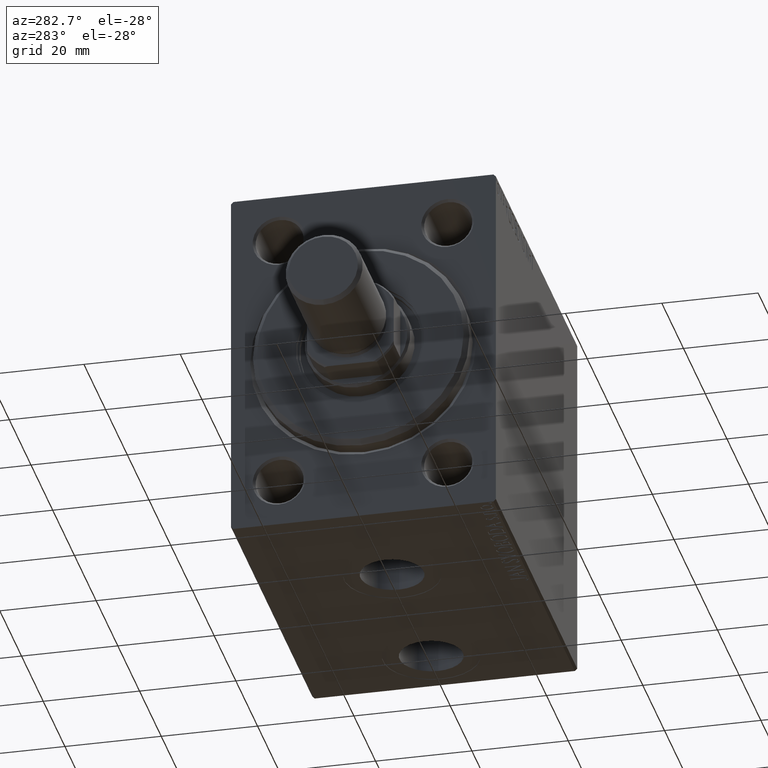
[diagram: clean part render]
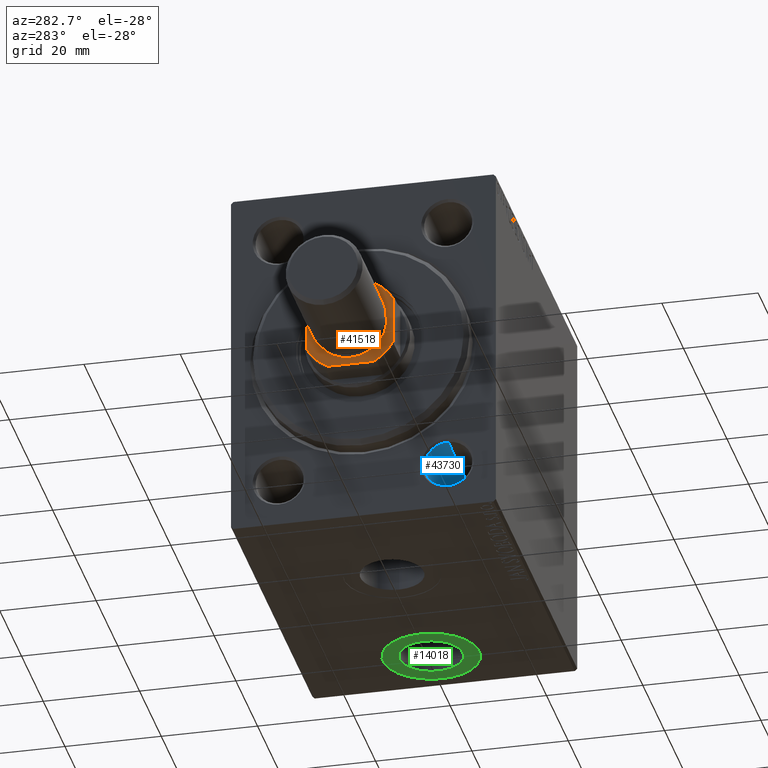
[diagram: same view with three faces highlighted in distinct colors, each labeled with its STEP entity id]
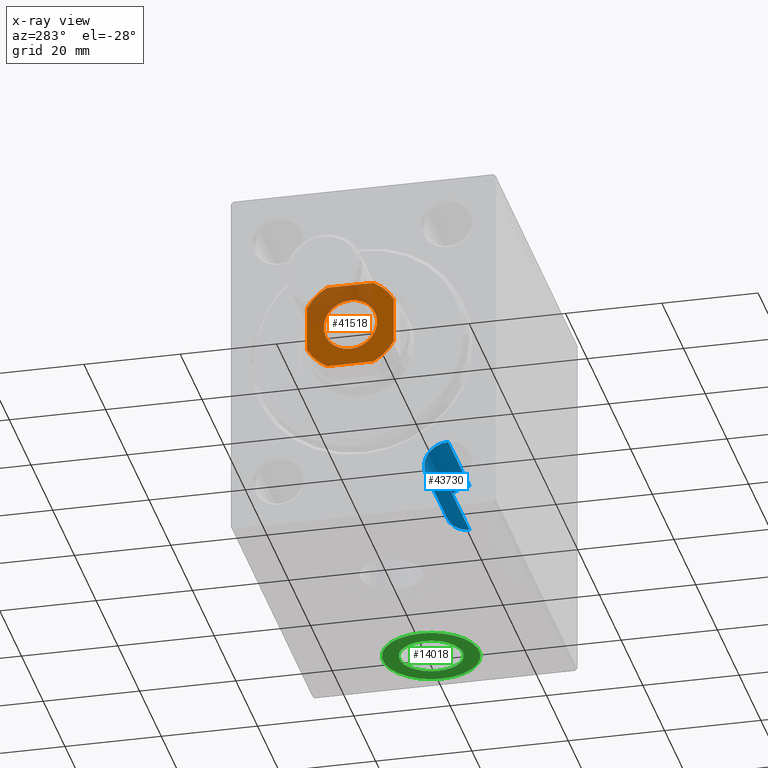
[diagram: x-ray of the same camera — body ghosted, the three highlighted faces saturated]
A machine part, auxiliary view with three faces highlighted in distinct colors.
The next image is the same camera in x-ray (body ghosted, the three faces saturated) — at least one of them is partly hidden behind the body in this view.
Their STEP definitions:

[orange] entity #41518 — the highlighted planar face has unit normal (-1, 0, 0).
#258 = ORIENTED_EDGE ( 'NONE', *, *, #14585, .T. ) ;
#431 = DIRECTION ( 'NONE',  ( 1.000000000000000000, 0.000000000000000000, 0.000000000000000000 ) ) ;
#521 = CARTESIAN_POINT ( 'NONE',  ( 8.999999999999998224, 4.800000000000010481, 77.00000000000001421 ) ) ;
#935 = DIRECTION ( 'NONE',  ( 1.927470528863119049E-16, -1.000000000000000000, 0.000000000000000000 ) ) ;
#1199 = CARTESIAN_POINT ( 'NONE',  ( 4.800000000000006928, -9.000000000000001776, 77.00000000000001421 ) ) ;
#1225 = ORIENTED_EDGE ( 'NONE', *, *, #35925, .T. ) ;
#1614 = LINE ( 'NONE', #12778, #33532 ) ;
#2029 = DIRECTION ( 'NONE',  ( -0.000000000000000000, 0.000000000000000000, 1.000000000000000000 ) ) ;
#2170 = ORIENTED_EDGE ( 'NONE', *, *, #41101, .T. ) ;
#2281 = CARTESIAN_POINT ( 'NONE',  ( 0.000000000000000000, 0.000000000000000000, 77.00000000000001421 ) ) ;
#2288 = AXIS2_PLACEMENT_3D ( 'NONE', #9945, #24357, #27852 ) ;
#2315 = EDGE_CURVE ( 'NONE', #2965, #8378, #4502, .T. ) ;
#2830 = CARTESIAN_POINT ( 'NONE',  ( -4.799999999999995381, -9.000000000000001776, 77.00000000000001421 ) ) ;
#2965 = VERTEX_POINT ( 'NONE', #25608 ) ;
#3362 = AXIS2_PLACEMENT_3D ( 'NONE', #36082, #32364, #7927 ) ;
#3585 = CARTESIAN_POINT ( 'NONE',  ( -8.999999999999998224, -4.799999999999999822, 77.00000000000001421 ) ) ;
#4456 = DIRECTION ( 'NONE',  ( -1.000000000000000000, -0.000000000000000000, -0.000000000000000000 ) ) ;
#4502 = CIRCLE ( 'NONE', #2288, 10.19999999999999396 ) ;
#6111 = EDGE_CURVE ( 'NONE', #36020, #32091, #38819, .T. ) ;
#6259 = VERTEX_POINT ( 'NONE', #42935 ) ;
#6490 = ORIENTED_EDGE ( 'NONE', *, *, #17903, .T. ) ;
#6657 = CARTESIAN_POINT ( 'NONE',  ( 8.999999999999998224, 8.999999999999998224, 77.00000000000001421 ) ) ;
#7162 = ORIENTED_EDGE ( 'NONE', *, *, #21734, .T. ) ;
#7927 = DIRECTION ( 'NONE',  ( 1.000000000000000000, 0.000000000000000000, 0.000000000000000000 ) ) ;
#8221 = DIRECTION ( 'NONE',  ( -1.927470528863119049E-16, 1.000000000000000000, -0.000000000000000000 ) ) ;
#8378 = VERTEX_POINT ( 'NONE', #16409 ) ;
#9140 = ORIENTED_EDGE ( 'NONE', *, *, #39602, .T. ) ;
#9241 = CARTESIAN_POINT ( 'NONE',  ( 0.000000000000000000, 0.000000000000000000, 77.00000000000001421 ) ) ;
#9898 = EDGE_LOOP ( 'NONE', ( #1225, #2170 ) ) ;
#9945 = CARTESIAN_POINT ( 'NONE',  ( 0.000000000000000000, 0.000000000000000000, 77.00000000000001421 ) ) ;
#10513 = AXIS2_PLACEMENT_3D ( 'NONE', #31964, #35460, #17994 ) ;
#11152 = CARTESIAN_POINT ( 'NONE',  ( -9.000000000000001776, 8.999999999999998224, 77.00000000000001421 ) ) ;
#12778 = CARTESIAN_POINT ( 'NONE',  ( -8.999999999999998224, -9.000000000000001776, 77.00000000000001421 ) ) ;
#13248 = ORIENTED_EDGE ( 'NONE', *, *, #15168, .T. ) ;
#13527 = VERTEX_POINT ( 'NONE', #2830 ) ;
#14159 = CARTESIAN_POINT ( 'NONE',  ( 0.000000000000000000, 0.000000000000000000, 77.00000000000001421 ) ) ;
#14585 = EDGE_CURVE ( 'NONE', #8378, #41125, #33030, .T. ) ;
#15168 = EDGE_CURVE ( 'NONE', #41125, #13527, #16739, .T. ) ;
#16409 = CARTESIAN_POINT ( 'NONE',  ( -9.000000000000001776, 4.799999999999986500, 77.00000000000001421 ) ) ;
#16739 = CIRCLE ( 'NONE', #42739, 10.19999999999999929 ) ;
#17469 = CIRCLE ( 'NONE', #3362, 10.20000000000000462 ) ;
#17903 = EDGE_CURVE ( 'NONE', #44157, #35678, #17469, .T. ) ;
#17994 = DIRECTION ( 'NONE',  ( 1.000000000000000000, 0.000000000000000000, 0.000000000000000000 ) ) ;
#19945 = FACE_BOUND ( 'NONE', #9898, .T. ) ;
#19986 = DIRECTION ( 'NONE',  ( 1.000000000000000000, 0.000000000000000000, 0.000000000000000000 ) ) ;
#21367 = DIRECTION ( 'NONE',  ( -0.000000000000000000, 0.000000000000000000, 1.000000000000000000 ) ) ;
#21734 = EDGE_CURVE ( 'NONE', #32091, #2965, #28863, .T. ) ;
#23814 = CARTESIAN_POINT ( 'NONE',  ( 0.000000000000000000, 0.000000000000000000, 77.00000000000001421 ) ) ;
#24357 = DIRECTION ( 'NONE',  ( -0.000000000000000000, 0.000000000000000000, 1.000000000000000000 ) ) ;
#24626 = CIRCLE ( 'NONE', #10513, 5.550000000000013145 ) ;
#24992 = CARTESIAN_POINT ( 'NONE',  ( 9.000000000000001776, -4.800000000000007816, 77.00000000000001421 ) ) ;
#25608 = CARTESIAN_POINT ( 'NONE',  ( -4.799999999999990941, 8.999999999999998224, 77.00000000000001421 ) ) ;
#26708 = VECTOR ( 'NONE', #8221, 1000.000000000000000 ) ;
#26885 = AXIS2_PLACEMENT_3D ( 'NONE', #2281, #44149, #30660 ) ;
#27789 = CARTESIAN_POINT ( 'NONE',  ( 5.550000000000013145, 0.000000000000000000, 77.00000000000001421 ) ) ;
#27852 = DIRECTION ( 'NONE',  ( 1.000000000000000000, 0.000000000000000000, 0.000000000000000000 ) ) ;
#28863 = LINE ( 'NONE', #32598, #39846 ) ;
#29131 = AXIS2_PLACEMENT_3D ( 'NONE', #9241, #2029, #44609 ) ;
#29941 = PLANE ( 'NONE',  #26885 ) ;
#30534 = VERTEX_POINT ( 'NONE', #27789 ) ;
#30660 = DIRECTION ( 'NONE',  ( 1.000000000000000000, 0.000000000000000000, 0.000000000000000000 ) ) ;
#31944 = CIRCLE ( 'NONE', #37153, 5.550000000000013145 ) ;
#31964 = CARTESIAN_POINT ( 'NONE',  ( 0.000000000000000000, 0.000000000000000000, 77.00000000000001421 ) ) ;
#32091 = VERTEX_POINT ( 'NONE', #41329 ) ;
#32364 = DIRECTION ( 'NONE',  ( -0.000000000000000000, 0.000000000000000000, 1.000000000000000000 ) ) ;
#32598 = CARTESIAN_POINT ( 'NONE',  ( -9.000000000000001776, 8.999999999999998224, 77.00000000000001421 ) ) ;
#33030 = LINE ( 'NONE', #11152, #40522 ) ;
#33532 = VECTOR ( 'NONE', #19986, 1000.000000000000000 ) ;
#34151 = FACE_OUTER_BOUND ( 'NONE', #35426, .T. ) ;
#34595 = ORIENTED_EDGE ( 'NONE', *, *, #6111, .T. ) ;
#35426 = EDGE_LOOP ( 'NONE', ( #39430, #34595, #7162, #36769, #258, #13248, #9140, #6490 ) ) ;
#35460 = DIRECTION ( 'NONE',  ( 0.000000000000000000, -0.000000000000000000, -1.000000000000000000 ) ) ;
#35678 = VERTEX_POINT ( 'NONE', #24992 ) ;
#35925 = EDGE_CURVE ( 'NONE', #30534, #6259, #31944, .T. ) ;
#36020 = VERTEX_POINT ( 'NONE', #521 ) ;
#36082 = CARTESIAN_POINT ( 'NONE',  ( 0.000000000000000000, 0.000000000000000000, 77.00000000000001421 ) ) ;
#36769 = ORIENTED_EDGE ( 'NONE', *, *, #2315, .T. ) ;
#37153 = AXIS2_PLACEMENT_3D ( 'NONE', #23814, #41519, #38477 ) ;
#38477 = DIRECTION ( 'NONE',  ( 1.000000000000000000, 0.000000000000000000, 0.000000000000000000 ) ) ;
#38819 = CIRCLE ( 'NONE', #29131, 10.20000000000000462 ) ;
#39418 = LINE ( 'NONE', #6657, #26708 ) ;
#39430 = ORIENTED_EDGE ( 'NONE', *, *, #44549, .T. ) ;
#39602 = EDGE_CURVE ( 'NONE', #13527, #44157, #1614, .T. ) ;
#39846 = VECTOR ( 'NONE', #4456, 1000.000000000000000 ) ;
#40522 = VECTOR ( 'NONE', #935, 1000.000000000000000 ) ;
#41101 = EDGE_CURVE ( 'NONE', #6259, #30534, #24626, .T. ) ;
#41125 = VERTEX_POINT ( 'NONE', #3585 ) ;
#41329 = CARTESIAN_POINT ( 'NONE',  ( 4.800000000000012257, 8.999999999999998224, 77.00000000000001421 ) ) ;
#41518 = ADVANCED_FACE ( 'NONE', ( #19945, #34151 ), #29941, .T. ) ;
#41519 = DIRECTION ( 'NONE',  ( 0.000000000000000000, -0.000000000000000000, -1.000000000000000000 ) ) ;
#42739 = AXIS2_PLACEMENT_3D ( 'NONE', #14159, #21367, #431 ) ;
#42935 = CARTESIAN_POINT ( 'NONE',  ( -5.550000000000013145, 6.796789735267826558E-16, 77.00000000000001421 ) ) ;
#44149 = DIRECTION ( 'NONE',  ( -0.000000000000000000, 0.000000000000000000, 1.000000000000000000 ) ) ;
#44157 = VERTEX_POINT ( 'NONE', #1199 ) ;
#44549 = EDGE_CURVE ( 'NONE', #35678, #36020, #39418, .T. ) ;
#44609 = DIRECTION ( 'NONE',  ( 1.000000000000000000, 0.000000000000000000, 0.000000000000000000 ) ) ;

[blue] entity #43730 — the highlighted cylindrical surface (edge-blend (fillet) strip) has radius 5 mm, axis along (-1, -0, -0).
#1304 = EDGE_CURVE ( 'NONE', #27348, #13377, #13508, .T. ) ;
#1782 = ORIENTED_EDGE ( 'NONE', *, *, #45450, .T. ) ;
#4442 = ORIENTED_EDGE ( 'NONE', *, *, #1304, .F. ) ;
#4706 = CARTESIAN_POINT ( 'NONE',  ( 20.00000000000000000, -17.50000000000000000, -32.49999999999999289 ) ) ;
#4909 = DIRECTION ( 'NONE',  ( -1.000000000000000000, -0.000000000000000000, -0.000000000000000000 ) ) ;
#6145 = CARTESIAN_POINT ( 'NONE',  ( 0.5000000000000247580, -17.50000000000000000, -32.49999999999999289 ) ) ;
#7184 = CARTESIAN_POINT ( 'NONE',  ( 20.00000000000000000, -17.50000000000000000, -27.49999999999999645 ) ) ;
#7596 = VERTEX_POINT ( 'NONE', #17554 ) ;
#9852 = DIRECTION ( 'NONE',  ( 0.000000000000000000, 0.000000000000000000, -1.000000000000000000 ) ) ;
#10874 = DIRECTION ( 'NONE',  ( 0.000000000000000000, 0.000000000000000000, 1.000000000000000000 ) ) ;
#11935 = DIRECTION ( 'NONE',  ( 0.000000000000000000, 0.000000000000000000, 1.000000000000000000 ) ) ;
#13377 = VERTEX_POINT ( 'NONE', #4706 ) ;
#13508 = CIRCLE ( 'NONE', #34976, 4.999999999999997335 ) ;
#13714 = VECTOR ( 'NONE', #19387, 1000.000000000000000 ) ;
#13847 = DIRECTION ( 'NONE',  ( -1.000000000000000000, -0.000000000000000000, -0.000000000000000000 ) ) ;
#14128 = CARTESIAN_POINT ( 'NONE',  ( 20.00000000000000000, -17.50000000000000000, -22.50000000000000000 ) ) ;
#16122 = CARTESIAN_POINT ( 'NONE',  ( 0.000000000000000000, -17.50000000000000000, -22.50000000000000000 ) ) ;
#16975 = EDGE_CURVE ( 'NONE', #27348, #7596, #44515, .T. ) ;
#17554 = CARTESIAN_POINT ( 'NONE',  ( 0.5000000000000247580, -17.50000000000000000, -22.50000000000000000 ) ) ;
#19387 = DIRECTION ( 'NONE',  ( -1.000000000000000000, -0.000000000000000000, -0.000000000000000000 ) ) ;
#20039 = AXIS2_PLACEMENT_3D ( 'NONE', #38523, #13847, #11935 ) ;
#21663 = LINE ( 'NONE', #36783, #38527 ) ;
#24322 = CYLINDRICAL_SURFACE ( 'NONE', #20039, 4.999999999999997335 ) ;
#25268 = AXIS2_PLACEMENT_3D ( 'NONE', #27297, #41511, #9852 ) ;
#27297 = CARTESIAN_POINT ( 'NONE',  ( 0.5000000000000247580, -17.50000000000000000, -27.49999999999999645 ) ) ;
#27348 = VERTEX_POINT ( 'NONE', #14128 ) ;
#31743 = EDGE_CURVE ( 'NONE', #13377, #45489, #21663, .T. ) ;
#34976 = AXIS2_PLACEMENT_3D ( 'NONE', #7184, #43455, #10874 ) ;
#36783 = CARTESIAN_POINT ( 'NONE',  ( 0.000000000000000000, -17.50000000000000000, -32.49999999999999289 ) ) ;
#38523 = CARTESIAN_POINT ( 'NONE',  ( 0.000000000000000000, -17.50000000000000000, -27.49999999999999645 ) ) ;
#38527 = VECTOR ( 'NONE', #4909, 1000.000000000000000 ) ;
#39394 = CIRCLE ( 'NONE', #25268, 4.999999999999997335 ) ;
#39615 = ORIENTED_EDGE ( 'NONE', *, *, #16975, .T. ) ;
#41511 = DIRECTION ( 'NONE',  ( -1.000000000000000000, 0.000000000000000000, 0.000000000000000000 ) ) ;
#42025 = FACE_OUTER_BOUND ( 'NONE', #45933, .T. ) ;
#43455 = DIRECTION ( 'NONE',  ( -1.000000000000000000, -0.000000000000000000, -0.000000000000000000 ) ) ;
#43730 = ADVANCED_FACE ( 'NONE', ( #42025 ), #24322, .F. ) ;
#44500 = ORIENTED_EDGE ( 'NONE', *, *, #31743, .F. ) ;
#44515 = LINE ( 'NONE', #16122, #13714 ) ;
#45450 = EDGE_CURVE ( 'NONE', #7596, #45489, #39394, .T. ) ;
#45489 = VERTEX_POINT ( 'NONE', #6145 ) ;
#45933 = EDGE_LOOP ( 'NONE', ( #44500, #4442, #39615, #1782 ) ) ;

[green] entity #14018 — the highlighted planar face has unit normal (0, 0, -1).
#1077 = DIRECTION ( 'NONE',  ( -1.000000000000000000, 0.000000000000000000, 0.000000000000000000 ) ) ;
#1437 = AXIS2_PLACEMENT_3D ( 'NONE', #28988, #7152, #32722 ) ;
#2928 = CIRCLE ( 'NONE', #1437, 10.00000000000000178 ) ;
#3224 = EDGE_CURVE ( 'NONE', #39870, #19254, #3807, .T. ) ;
#3807 = CIRCLE ( 'NONE', #33525, 10.00000000000000178 ) ;
#4116 = DIRECTION ( 'NONE',  ( 0.000000000000000000, 0.000000000000000000, -1.000000000000000000 ) ) ;
#4789 = EDGE_CURVE ( 'NONE', #25784, #43190, #44693, .T. ) ;
#5053 = CARTESIAN_POINT ( 'NONE',  ( 72.50000000000000000, -6.298679886106752964E-15, -37.39999999999999858 ) ) ;
#5696 = DIRECTION ( 'NONE',  ( -1.000000000000000000, 0.000000000000000000, -0.000000000000000000 ) ) ;
#7152 = DIRECTION ( 'NONE',  ( 0.000000000000000000, 0.000000000000000000, -1.000000000000000000 ) ) ;
#9160 = EDGE_LOOP ( 'NONE', ( #15524, #40718 ) ) ;
#9529 = CARTESIAN_POINT ( 'NONE',  ( 62.49999999999999289, -7.523326685254106813E-15, -37.39999999999999858 ) ) ;
#12122 = DIRECTION ( 'NONE',  ( -1.000000000000000000, 0.000000000000000000, 0.000000000000000000 ) ) ;
#12198 = AXIS2_PLACEMENT_3D ( 'NONE', #24060, #43897, #5696 ) ;
#12450 = CARTESIAN_POINT ( 'NONE',  ( 69.07999999999999829, -6.717509091415148559E-15, -37.39999999999999858 ) ) ;
#12705 = CIRCLE ( 'NONE', #44661, 6.580000000000002736 ) ;
#14018 = ADVANCED_FACE ( 'NONE', ( #30814, #27317 ), #29688, .T. ) ;
#15253 = CARTESIAN_POINT ( 'NONE',  ( 62.49999999999999289, -7.523326685254106813E-15, -37.39999999999999858 ) ) ;
#15524 = ORIENTED_EDGE ( 'NONE', *, *, #39385, .F. ) ;
#16036 = DIRECTION ( 'NONE',  ( 0.000000000000000000, 0.000000000000000000, -1.000000000000000000 ) ) ;
#16205 = EDGE_LOOP ( 'NONE', ( #40447, #39255 ) ) ;
#19254 = VERTEX_POINT ( 'NONE', #22079 ) ;
#19504 = CARTESIAN_POINT ( 'NONE',  ( 55.91999999999998749, -7.523326685254106813E-15, -37.39999999999999858 ) ) ;
#22079 = CARTESIAN_POINT ( 'NONE',  ( 52.49999999999999289, -7.523326685254106813E-15, -37.39999999999999858 ) ) ;
#24060 = CARTESIAN_POINT ( 'NONE',  ( 62.49999999999999289, -7.523326685254106813E-15, -37.39999999999999858 ) ) ;
#25784 = VERTEX_POINT ( 'NONE', #12450 ) ;
#27317 = FACE_OUTER_BOUND ( 'NONE', #16205, .T. ) ;
#28988 = CARTESIAN_POINT ( 'NONE',  ( 62.49999999999999289, -7.523326685254106813E-15, -37.39999999999999858 ) ) ;
#29688 = PLANE ( 'NONE',  #12198 ) ;
#30814 = FACE_BOUND ( 'NONE', #9160, .T. ) ;
#32722 = DIRECTION ( 'NONE',  ( -1.000000000000000000, 0.000000000000000000, 0.000000000000000000 ) ) ;
#33525 = AXIS2_PLACEMENT_3D ( 'NONE', #15253, #4116, #1077 ) ;
#34472 = EDGE_CURVE ( 'NONE', #19254, #39870, #2928, .T. ) ;
#39255 = ORIENTED_EDGE ( 'NONE', *, *, #3224, .T. ) ;
#39385 = EDGE_CURVE ( 'NONE', #43190, #25784, #12705, .T. ) ;
#39870 = VERTEX_POINT ( 'NONE', #5053 ) ;
#40447 = ORIENTED_EDGE ( 'NONE', *, *, #34472, .T. ) ;
#40528 = CARTESIAN_POINT ( 'NONE',  ( 62.49999999999999289, -7.523326685254106813E-15, -37.39999999999999858 ) ) ;
#40718 = ORIENTED_EDGE ( 'NONE', *, *, #4789, .F. ) ;
#40955 = DIRECTION ( 'NONE',  ( -1.000000000000000000, 0.000000000000000000, 0.000000000000000000 ) ) ;
#43190 = VERTEX_POINT ( 'NONE', #19504 ) ;
#43897 = DIRECTION ( 'NONE',  ( 0.000000000000000000, 0.000000000000000000, -1.000000000000000000 ) ) ;
#43949 = AXIS2_PLACEMENT_3D ( 'NONE', #9529, #16036, #40955 ) ;
#44661 = AXIS2_PLACEMENT_3D ( 'NONE', #40528, #44716, #12122 ) ;
#44693 = CIRCLE ( 'NONE', #43949, 6.580000000000002736 ) ;
#44716 = DIRECTION ( 'NONE',  ( 0.000000000000000000, 0.000000000000000000, -1.000000000000000000 ) ) ;